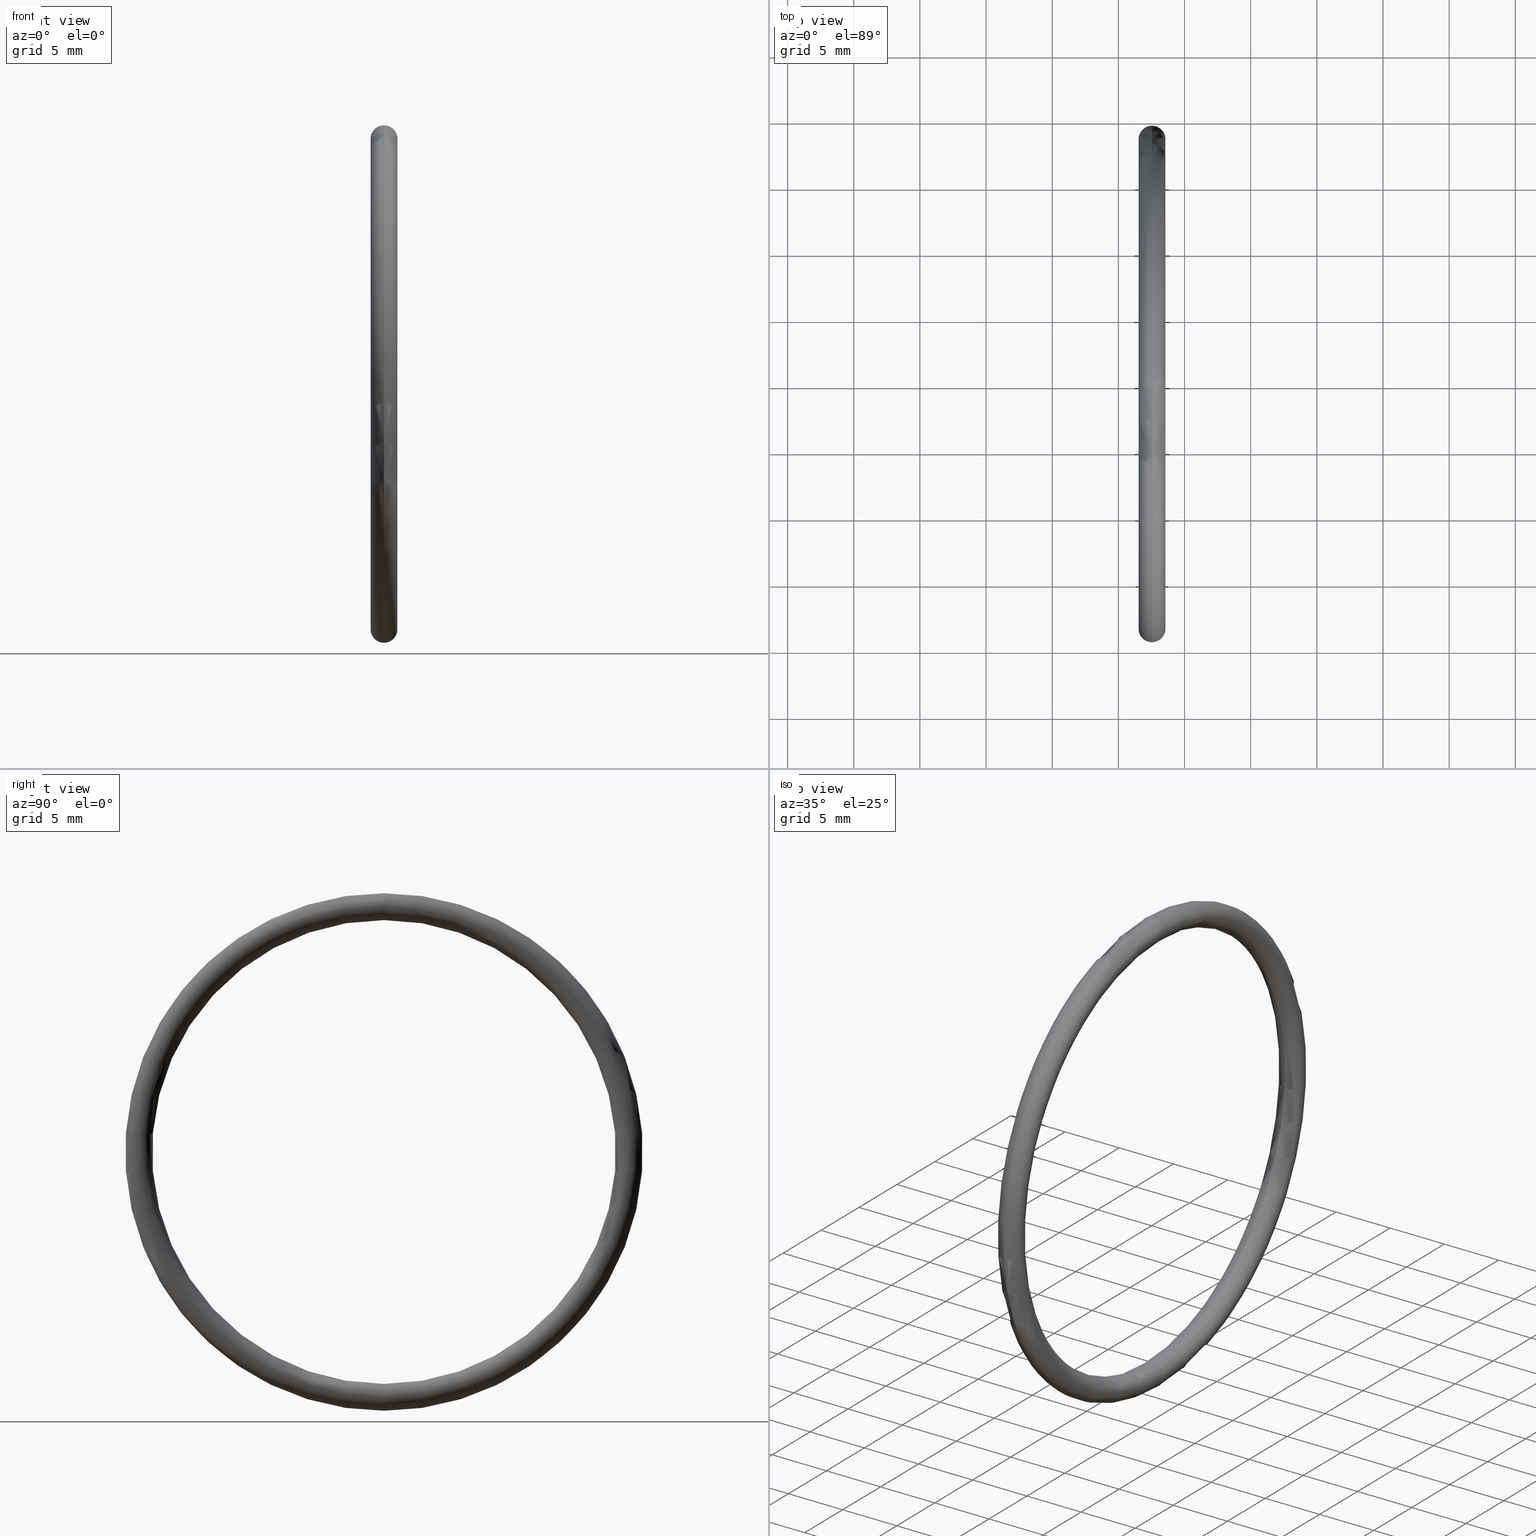
[diagram: canonical four-view strip — front | top / right | iso, engineering-drawing reading convention]
A machine part, canonical four-view strip (front | top / right | iso — engineering-drawing reading convention). The complete STEP part file that produces these views, byte-faithful:
ISO-10303-21;
HEADER;
FILE_DESCRIPTION (( 'STEP AP203' ),
    '1' );
FILE_NAME ('OM-40-SI.STEP',
    '2006-03-03T08:03:07',
    ( 'bay06' ),
    ( '' ),
    'SwSTEP 2.0',
    'SolidWorks 2008',
    '' );
FILE_SCHEMA (( 'CONFIG_CONTROL_DESIGN' ));
ENDSEC;

DATA;
#1 =( GEOMETRIC_REPRESENTATION_CONTEXT ( 3 ) GLOBAL_UNCERTAINTY_ASSIGNED_CONTEXT ( ( #71 ) ) GLOBAL_UNIT_ASSIGNED_CONTEXT ( ( #74, #73, #72 ) ) REPRESENTATION_CONTEXT ( 'NONE', 'WORKASPACE' ) );
#2 = APPLICATION_CONTEXT ( 'configuration controlled 3d designs of mechanical parts and assemblies' ) ;
#3 = MECHANICAL_CONTEXT ( 'NONE', #2, 'mechanical' ) ;
#4 = APPLICATION_PROTOCOL_DEFINITION ( 'international standard', 'config_control_design', 1994, #2 ) ;
#5 = PERSON_AND_ORGANIZATION ( #131, #149 ) ;
#6 = APPROVAL_STATUS ( 'not_yet_approved' ) ;
#7 = ADVANCED_BREP_SHAPE_REPRESENTATION ( 'OM-40-SI', ( #37, #122 ), #1 ) ;
#8 = DIRECTION ( 'NONE',  ( 0.0000000000000000000, 0.0000000000000000000, -1.000000000000000000 ) ) ;
#9 = DIRECTION ( 'NONE',  ( 0.0000000000000000000, -1.000000000000000000, 0.0000000000000000000 ) ) ;
#10 = CARTESIAN_POINT ( 'NONE',  ( 0.1000000000000000900, 0.0000000000000000000, 0.7299999999999998700 ) ) ;
#11 = AXIS2_PLACEMENT_3D ( 'NONE', #10, #9, #8 ) ;
#12 = CIRCLE ( 'NONE', #11, 0.03999999999999998000 ) ;
#13 = FACE_OUTER_BOUND ( 'NONE', #54, .T. ) ;
#14 = DIRECTION ( 'NONE',  ( 0.0000000000000000000, 0.0000000000000000000, 1.000000000000000000 ) ) ;
#15 = DIRECTION ( 'NONE',  ( -1.000000000000000000, -0.0000000000000000000, -0.0000000000000000000 ) ) ;
#16 = AXIS2_PLACEMENT_3D ( 'NONE', #18, #15, #14 ) ;
#17 = TOROIDAL_SURFACE ( 'NONE', #16, 0.7299999999999998700, 0.03999999999999997300 ) ;
#18 = CARTESIAN_POINT ( 'NONE',  ( 0.1000000000000000900, 0.0000000000000000000, 0.0000000000000000000 ) ) ;
#19 = DIRECTION ( 'NONE',  ( 0.0000000000000000000, 0.0000000000000000000, 1.000000000000000000 ) ) ;
#20 = DIRECTION ( 'NONE',  ( -1.000000000000000000, -0.0000000000000000000, -0.0000000000000000000 ) ) ;
#21 = AXIS2_PLACEMENT_3D ( 'NONE', #67, #20, #19 ) ;
#22 = CIRCLE ( 'NONE', #21, 0.6899999999999998400 ) ;
#23 = FACE_OUTER_BOUND ( 'NONE', #25, .T. ) ;
#24 = EDGE_CURVE ( 'NONE', #48, #52, #66, .T. ) ;
#25 = EDGE_LOOP ( 'NONE', ( #30, #27, #32, #26 ) ) ;
#26 = ORIENTED_EDGE ( 'NONE', *, *, #43, .T. ) ;
#27 = ORIENTED_EDGE ( 'NONE', *, *, #36, .F. ) ;
#28 = EDGE_CURVE ( 'NONE', #58, #51, #22, .T. ) ;
#29 = ORIENTED_EDGE ( 'NONE', *, *, #36, .T. ) ;
#30 = ORIENTED_EDGE ( 'NONE', *, *, #24, .F. ) ;
#31 = ORIENTED_EDGE ( 'NONE', *, *, #49, .F. ) ;
#32 = ORIENTED_EDGE ( 'NONE', *, *, #28, .T. ) ;
#33 = ORIENTED_EDGE ( 'NONE', *, *, #24, .T. ) ;
#34 = ADVANCED_FACE ( 'NONE', ( #23 ), #17, .T. ) ;
#35 = ORIENTED_EDGE ( 'NONE', *, *, #50, .T. ) ;
#36 = EDGE_CURVE ( 'NONE', #58, #48, #12, .T. ) ;
#37 = MANIFOLD_SOLID_BREP ( 'NONE', #42 ) ;
#38 = ADVANCED_FACE ( 'NONE', ( #13 ), #69, .T. ) ;
#39 = ORIENTED_EDGE ( 'NONE', *, *, #28, .F. ) ;
#40 = ORIENTED_EDGE ( 'NONE', *, *, #43, .F. ) ;
#41 = ORIENTED_EDGE ( 'NONE', *, *, #59, .T. ) ;
#42 = CLOSED_SHELL ( 'NONE', ( #38, #56, #34, #44 ) ) ;
#43 = EDGE_CURVE ( 'NONE', #51, #52, #100, .T. ) ;
#44 = ADVANCED_FACE ( 'NONE', ( #76 ), #115, .T. ) ;
#45 = EDGE_LOOP ( 'NONE', ( #31, #40, #41, #29 ) ) ;
#46 = ORIENTED_EDGE ( 'NONE', *, *, #60, .F. ) ;
#47 = ORIENTED_EDGE ( 'NONE', *, *, #60, .T. ) ;
#48 = VERTEX_POINT ( 'NONE', #116 ) ;
#49 = EDGE_CURVE ( 'NONE', #52, #48, #92, .T. ) ;
#50 = EDGE_CURVE ( 'NONE', #52, #51, #114, .T. ) ;
#51 = VERTEX_POINT ( 'NONE', #111 ) ;
#52 = VERTEX_POINT ( 'NONE', #110 ) ;
#53 = ORIENTED_EDGE ( 'NONE', *, *, #50, .F. ) ;
#54 = EDGE_LOOP ( 'NONE', ( #53, #55, #47, #61 ) ) ;
#55 = ORIENTED_EDGE ( 'NONE', *, *, #49, .T. ) ;
#56 = ADVANCED_FACE ( 'NONE', ( #109 ), #107, .T. ) ;
#57 = EDGE_LOOP ( 'NONE', ( #46, #33, #35, #39 ) ) ;
#58 = VERTEX_POINT ( 'NONE', #99 ) ;
#59 = EDGE_CURVE ( 'NONE', #51, #58, #102, .T. ) ;
#60 = EDGE_CURVE ( 'NONE', #48, #58, #82, .T. ) ;
#61 = ORIENTED_EDGE ( 'NONE', *, *, #59, .F. ) ;
#62 = DIRECTION ( 'NONE',  ( 0.0000000000000000000, 0.0000000000000000000, 1.000000000000000000 ) ) ;
#63 = DIRECTION ( 'NONE',  ( -1.000000000000000000, -0.0000000000000000000, -0.0000000000000000000 ) ) ;
#64 = CARTESIAN_POINT ( 'NONE',  ( 0.1000000000000000900, 0.0000000000000000000, 0.0000000000000000000 ) ) ;
#65 = AXIS2_PLACEMENT_3D ( 'NONE', #64, #63, #62 ) ;
#66 = CIRCLE ( 'NONE', #65, 0.7699999999999998000 ) ;
#67 = CARTESIAN_POINT ( 'NONE',  ( 0.1000000000000000900, 0.0000000000000000000, 0.0000000000000000000 ) ) ;
#68 = CARTESIAN_POINT ( 'NONE',  ( 0.1000000000000000900, 0.0000000000000000000, 0.0000000000000000000 ) ) ;
#69 = TOROIDAL_SURFACE ( 'NONE', #70, 0.7299999999999998700, 0.03999999999999997300 ) ;
#70 = AXIS2_PLACEMENT_3D ( 'NONE', #68, #106, #78 ) ;
#71 = UNCERTAINTY_MEASURE_WITH_UNIT (LENGTH_MEASURE( 1.000000000000000100E-005 ), #74, 'distance_accuracy_value', 'NONE');
#72 =( NAMED_UNIT ( * ) SI_UNIT ( $, .STERADIAN. ) SOLID_ANGLE_UNIT ( ) );
#73 =( NAMED_UNIT ( * ) PLANE_ANGLE_UNIT ( ) SI_UNIT ( $, .RADIAN. ) );
#74 =( CONVERSION_BASED_UNIT ( 'INCH', #117 ) LENGTH_UNIT ( ) NAMED_UNIT ( #118 ) );
#75 = AXIS2_PLACEMENT_3D ( 'NONE', #93, #105, #95 ) ;
#76 = FACE_OUTER_BOUND ( 'NONE', #45, .T. ) ;
#77 = DIRECTION ( 'NONE',  ( -1.000000000000000000, -0.0000000000000000000, -0.0000000000000000000 ) ) ;
#78 = DIRECTION ( 'NONE',  ( 0.0000000000000000000, 0.0000000000000000000, 1.000000000000000000 ) ) ;
#79 = DIRECTION ( 'NONE',  ( 0.0000000000000000000, -1.000000000000000000, 0.0000000000000000000 ) ) ;
#80 = CARTESIAN_POINT ( 'NONE',  ( 0.1000000000000000900, 0.0000000000000000000, 0.7299999999999998700 ) ) ;
#81 = AXIS2_PLACEMENT_3D ( 'NONE', #80, #79, #120 ) ;
#82 = CIRCLE ( 'NONE', #81, 0.03999999999999998000 ) ;
#83 = DIRECTION ( 'NONE',  ( 0.0000000000000000000, 0.0000000000000000000, 1.000000000000000000 ) ) ;
#84 = DIRECTION ( 'NONE',  ( -1.000000000000000000, -0.0000000000000000000, -0.0000000000000000000 ) ) ;
#85 = AXIS2_PLACEMENT_3D ( 'NONE', #101, #84, #83 ) ;
#86 = CARTESIAN_POINT ( 'NONE',  ( 0.1000000000000000900, 8.939921633775677100E-017, -0.7299999999999998700 ) ) ;
#87 = CARTESIAN_POINT ( 'NONE',  ( 0.1000000000000000900, 0.0000000000000000000, 0.0000000000000000000 ) ) ;
#88 = DIRECTION ( 'NONE',  ( 0.0000000000000000000, 0.0000000000000000000, 1.000000000000000000 ) ) ;
#89 = DIRECTION ( 'NONE',  ( -1.000000000000000000, -0.0000000000000000000, -0.0000000000000000000 ) ) ;
#90 = CARTESIAN_POINT ( 'NONE',  ( 0.1000000000000000900, 0.0000000000000000000, 0.0000000000000000000 ) ) ;
#91 = AXIS2_PLACEMENT_3D ( 'NONE', #90, #89, #88 ) ;
#92 = CIRCLE ( 'NONE', #91, 0.7699999999999998000 ) ;
#93 = CARTESIAN_POINT ( 'NONE',  ( 0.1000000000000000900, 8.939921633775677100E-017, -0.7299999999999998700 ) ) ;
#94 = DIRECTION ( 'NONE',  ( 0.0000000000000000000, 0.0000000000000000000, 1.000000000000000000 ) ) ;
#95 = DIRECTION ( 'NONE',  ( 0.0000000000000000000, -1.224646799147351000E-016, 1.000000000000000000 ) ) ;
#96 = DIRECTION ( 'NONE',  ( -0.0000000000000000000, 1.000000000000000000, 1.224646799147353200E-016 ) ) ;
#97 = DIRECTION ( 'NONE',  ( -1.000000000000000000, -0.0000000000000000000, -0.0000000000000000000 ) ) ;
#98 = CARTESIAN_POINT ( 'NONE',  ( 0.1000000000000000900, 0.0000000000000000000, 0.0000000000000000000 ) ) ;
#99 = CARTESIAN_POINT ( 'NONE',  ( 0.1000000000000000900, 0.0000000000000000000, 0.6899999999999998400 ) ) ;
#100 = CIRCLE ( 'NONE', #75, 0.03999999999999998000 ) ;
#101 = CARTESIAN_POINT ( 'NONE',  ( 0.1000000000000000900, 0.0000000000000000000, 0.0000000000000000000 ) ) ;
#102 = CIRCLE ( 'NONE', #85, 0.6899999999999998400 ) ;
#103 = DIRECTION ( 'NONE',  ( 0.0000000000000000000, 0.0000000000000000000, 1.000000000000000000 ) ) ;
#104 = AXIS2_PLACEMENT_3D ( 'NONE', #87, #77, #94 ) ;
#105 = DIRECTION ( 'NONE',  ( -0.0000000000000000000, 1.000000000000000000, 1.224646799147353200E-016 ) ) ;
#106 = DIRECTION ( 'NONE',  ( -1.000000000000000000, -0.0000000000000000000, -0.0000000000000000000 ) ) ;
#107 = TOROIDAL_SURFACE ( 'NONE', #108, 0.7299999999999998700, 0.03999999999999997300 ) ;
#108 = AXIS2_PLACEMENT_3D ( 'NONE', #98, #97, #103 ) ;
#109 = FACE_OUTER_BOUND ( 'NONE', #57, .T. ) ;
#110 = CARTESIAN_POINT ( 'NONE',  ( 0.1000000000000000900, 9.429780353434617300E-017, -0.7699999999999996800 ) ) ;
#111 = CARTESIAN_POINT ( 'NONE',  ( 0.1000000000000000900, 8.450062914116736900E-017, -0.6899999999999998400 ) ) ;
#112 = DIRECTION ( 'NONE',  ( 0.0000000000000000000, -1.224646799147351000E-016, 1.000000000000000000 ) ) ;
#113 = AXIS2_PLACEMENT_3D ( 'NONE', #86, #96, #112 ) ;
#114 = CIRCLE ( 'NONE', #113, 0.03999999999999998000 ) ;
#115 = TOROIDAL_SURFACE ( 'NONE', #104, 0.7299999999999998700, 0.03999999999999997300 ) ;
#116 = CARTESIAN_POINT ( 'NONE',  ( 0.1000000000000000900, 0.0000000000000000000, 0.7699999999999996800 ) ) ;
#117 = LENGTH_MEASURE_WITH_UNIT ( LENGTH_MEASURE( 0.02539999999999999900 ), #119 );
#118 = DIMENSIONAL_EXPONENTS ( 1.000000000000000000, 0.0000000000000000000, 0.0000000000000000000, 0.0000000000000000000, 0.0000000000000000000, 0.0000000000000000000, 0.0000000000000000000 ) ;
#119 =( LENGTH_UNIT ( ) NAMED_UNIT ( * ) SI_UNIT ( $, .METRE. ) );
#120 = DIRECTION ( 'NONE',  ( 0.0000000000000000000, 0.0000000000000000000, -1.000000000000000000 ) ) ;
#121 = CARTESIAN_POINT ( 'NONE',  ( 0.0000000000000000000, 0.0000000000000000000, 0.0000000000000000000 ) ) ;
#122 = AXIS2_PLACEMENT_3D ( 'NONE', #121, #124, #123 ) ;
#123 = DIRECTION ( 'NONE',  ( 1.000000000000000000, 0.0000000000000000000, 0.0000000000000000000 ) ) ;
#124 = DIRECTION ( 'NONE',  ( 0.0000000000000000000, 0.0000000000000000000, 1.000000000000000000 ) ) ;
#125 = PERSON_AND_ORGANIZATION_ROLE ( 'creator' ) ;
#126 = PERSON_AND_ORGANIZATION ( #131, #149 ) ;
#127 = CC_DESIGN_APPROVAL ( #136, ( #145 ) ) ;
#128 = APPROVAL_DATE_TIME ( #129, #136 ) ;
#129 = DATE_AND_TIME ( #130, #132 ) ;
#130 = CALENDAR_DATE ( 2006, 3, 3 ) ;
#131 = PERSON ( 'UNSPECIFIED', 'UNSPECIFIED', 'UNSPECIFIED', ('UNSPECIFIED'), ('UNSPECIFIED'), ('UNSPECIFIED') ) ;
#132 = LOCAL_TIME ( 13, 33, 7.000000000000000000, #133 ) ;
#133 = COORDINATED_UNIVERSAL_TIME_OFFSET ( 5, 30, .AHEAD. ) ;
#134 = APPROVAL_PERSON_ORGANIZATION ( #144, #136, #135 ) ;
#135 = APPROVAL_ROLE ( '' ) ;
#136 = APPROVAL ( #143, 'UNSPECIFIED' ) ;
#137 = PRODUCT_DEFINITION_FORMATION_WITH_SPECIFIED_SOURCE ( 'ANY', '', #148, .NOT_KNOWN. ) ;
#138 = CC_DESIGN_DATE_AND_TIME_ASSIGNMENT ( #154, #139, ( #145 ) ) ;
#139 = DATE_TIME_ROLE ( 'creation_date' ) ;
#140 = CALENDAR_DATE ( 2006, 3, 3 ) ;
#141 = LOCAL_TIME ( 13, 33, 7.000000000000000000, #142 ) ;
#142 = COORDINATED_UNIVERSAL_TIME_OFFSET ( 5, 30, .AHEAD. ) ;
#143 = APPROVAL_STATUS ( 'not_yet_approved' ) ;
#144 = PERSON_AND_ORGANIZATION ( #131, #149 ) ;
#145 = PRODUCT_DEFINITION ( 'UNKNOWN', '', #137, #146 ) ;
#146 = DESIGN_CONTEXT ( 'detailed design', #152, 'design' ) ;
#147 = PERSON_AND_ORGANIZATION ( #131, #149 ) ;
#148 = PRODUCT ( 'OM-40-SI', 'OM-40-SI', '', ( #3 ) ) ;
#149 = ORGANIZATION ( 'UNSPECIFIED', 'UNSPECIFIED', '' ) ;
#150 = CC_DESIGN_PERSON_AND_ORGANIZATION_ASSIGNMENT ( #147, #153, ( #148 ) ) ;
#151 = APPLICATION_PROTOCOL_DEFINITION ( 'international standard', 'config_control_design', 1994, #152 ) ;
#152 = APPLICATION_CONTEXT ( 'configuration controlled 3d designs of mechanical parts and assemblies' ) ;
#153 = PERSON_AND_ORGANIZATION_ROLE ( 'design_owner' ) ;
#154 = DATE_AND_TIME ( #140, #141 ) ;
#155 = CC_DESIGN_PERSON_AND_ORGANIZATION_ASSIGNMENT ( #126, #125, ( #145 ) ) ;
#156 = CALENDAR_DATE ( 2006, 3, 3 ) ;
#157 = COORDINATED_UNIVERSAL_TIME_OFFSET ( 5, 30, .AHEAD. ) ;
#158 = DATE_AND_TIME ( #156, #171 ) ;
#159 = APPROVAL_DATE_TIME ( #158, #172 ) ;
#160 = PERSON_AND_ORGANIZATION_ROLE ( 'design_supplier' ) ;
#161 = PERSON_AND_ORGANIZATION ( #131, #149 ) ;
#162 = CC_DESIGN_PERSON_AND_ORGANIZATION_ASSIGNMENT ( #164, #163, ( #137 ) ) ;
#163 = PERSON_AND_ORGANIZATION_ROLE ( 'creator' ) ;
#164 = PERSON_AND_ORGANIZATION ( #131, #149 ) ;
#165 = PERSON_AND_ORGANIZATION_ROLE ( 'classification_officer' ) ;
#166 = PERSON_AND_ORGANIZATION ( #131, #149 ) ;
#167 = SECURITY_CLASSIFICATION ( '', '', #169 ) ;
#168 = CC_DESIGN_APPROVAL ( #172, ( #137 ) ) ;
#169 = SECURITY_CLASSIFICATION_LEVEL ( 'unclassified' ) ;
#170 = CC_DESIGN_PERSON_AND_ORGANIZATION_ASSIGNMENT ( #161, #160, ( #137 ) ) ;
#171 = LOCAL_TIME ( 13, 33, 7.000000000000000000, #157 ) ;
#172 = APPROVAL ( #6, 'UNSPECIFIED' ) ;
#173 = SHAPE_DEFINITION_REPRESENTATION ( #193, #7 ) ;
#174 = APPROVAL_PERSON_ORGANIZATION ( #5, #172, #196 ) ;
#175 = CC_DESIGN_APPROVAL ( #183, ( #167 ) ) ;
#176 = APPROVAL_DATE_TIME ( #177, #183 ) ;
#177 = DATE_AND_TIME ( #178, #179 ) ;
#178 = CALENDAR_DATE ( 2006, 3, 3 ) ;
#179 = LOCAL_TIME ( 13, 33, 7.000000000000000000, #180 ) ;
#180 = COORDINATED_UNIVERSAL_TIME_OFFSET ( 5, 30, .AHEAD. ) ;
#181 = APPROVAL_PERSON_ORGANIZATION ( #188, #183, #182 ) ;
#182 = APPROVAL_ROLE ( '' ) ;
#183 = APPROVAL ( #187, 'UNSPECIFIED' ) ;
#184 = LOCAL_TIME ( 13, 33, 7.000000000000000000, #185 ) ;
#185 = COORDINATED_UNIVERSAL_TIME_OFFSET ( 5, 30, .AHEAD. ) ;
#186 = CC_DESIGN_PERSON_AND_ORGANIZATION_ASSIGNMENT ( #166, #165, ( #167 ) ) ;
#187 = APPROVAL_STATUS ( 'not_yet_approved' ) ;
#188 = PERSON_AND_ORGANIZATION ( #131, #149 ) ;
#189 = CC_DESIGN_DATE_AND_TIME_ASSIGNMENT ( #191, #190, ( #167 ) ) ;
#190 = DATE_TIME_ROLE ( 'classification_date' ) ;
#191 = DATE_AND_TIME ( #192, #184 ) ;
#192 = CALENDAR_DATE ( 2006, 3, 3 ) ;
#193 = PRODUCT_DEFINITION_SHAPE ( 'NONE', 'NONE',  #145 ) ;
#194 = PRODUCT_RELATED_PRODUCT_CATEGORY ( 'detail', '', ( #148 ) ) ;
#195 = CC_DESIGN_SECURITY_CLASSIFICATION ( #167, ( #137 ) ) ;
#196 = APPROVAL_ROLE ( '' ) ;
ENDSEC;
END-ISO-10303-21;
